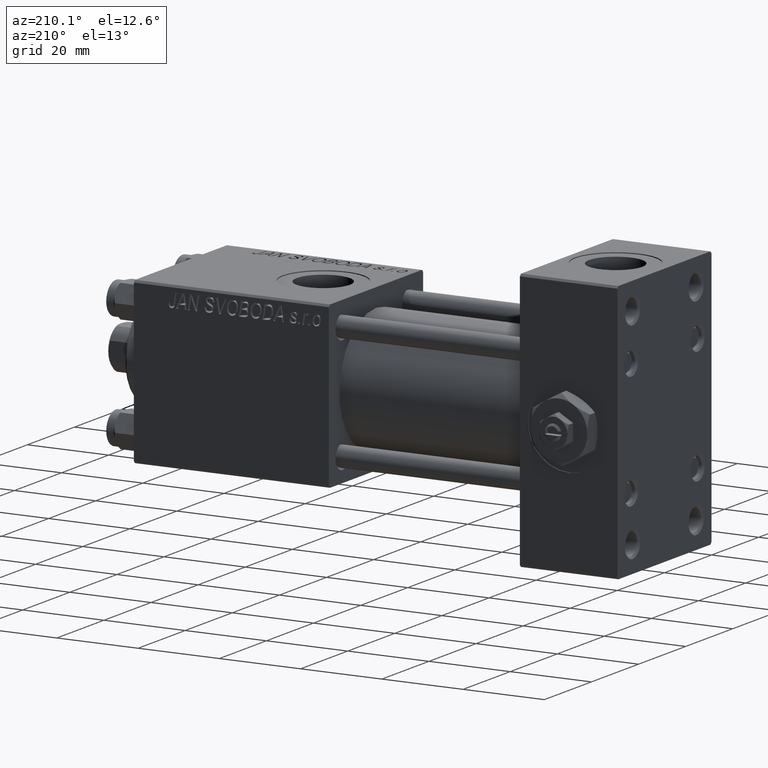
[diagram: clean part render]
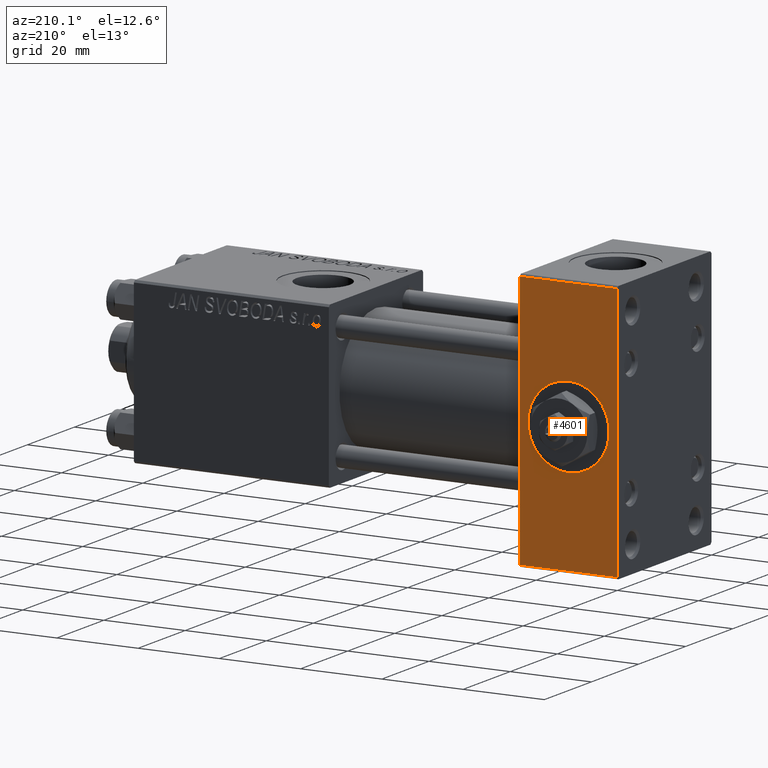
[diagram: same view with one face highlighted and labeled with its STEP entity id]
A machine part, auxiliary view. The second image highlights one B-rep face of the part: STEP entity #4601.
In plain terms, the highlighted planar face has unit normal (0, 1, 0).
Its self-contained STEP definition (entity closure, byte-faithful):
#504 = ORIENTED_EDGE ( 'NONE', *, *, #46518, .F. ) ;
#2480 = CARTESIAN_POINT ( 'NONE',  ( 24.00000000000000000, 19.99999999999999645, 31.50000000000000000 ) ) ;
#2987 = DIRECTION ( 'NONE',  ( -0.000000000000000000, 1.000000000000000000, 0.000000000000000000 ) ) ;
#3263 = EDGE_LOOP ( 'NONE', ( #10910, #19315 ) ) ;
#4601 = ADVANCED_FACE ( 'NONE', ( #50481, #30952 ), #51266, .T. ) ;
#4708 = VERTEX_POINT ( 'NONE', #35386 ) ;
#4879 = CARTESIAN_POINT ( 'NONE',  ( 12.00000000000000178, 19.99999999999999645, -10.00000000000000000 ) ) ;
#5393 = DIRECTION ( 'NONE',  ( 0.000000000000000000, 0.000000000000000000, -1.000000000000000000 ) ) ;
#5813 = CARTESIAN_POINT ( 'NONE',  ( 12.00000000000000000, 19.99999999999999645, 0.000000000000000000 ) ) ;
#6402 = LINE ( 'NONE', #38270, #42494 ) ;
#7451 = LINE ( 'NONE', #14536, #25039 ) ;
#9739 = DIRECTION ( 'NONE',  ( 0.000000000000000000, 1.000000000000000000, 0.000000000000000000 ) ) ;
#10910 = ORIENTED_EDGE ( 'NONE', *, *, #28566, .F. ) ;
#11413 = DIRECTION ( 'NONE',  ( -1.000000000000000000, 0.000000000000000000, 0.000000000000000000 ) ) ;
#12363 = CARTESIAN_POINT ( 'NONE',  ( 24.00000000000000000, 19.99999999999999645, -31.50000000000000000 ) ) ;
#12544 = AXIS2_PLACEMENT_3D ( 'NONE', #28562, #48367, #44469 ) ;
#13230 = EDGE_CURVE ( 'NONE', #44429, #18392, #6402, .T. ) ;
#14536 = CARTESIAN_POINT ( 'NONE',  ( 24.00000000000000000, 19.99999999999999645, 31.50000000000000000 ) ) ;
#15567 = DIRECTION ( 'NONE',  ( 1.000000000000000000, 0.000000000000000000, 0.000000000000000000 ) ) ;
#15989 = VERTEX_POINT ( 'NONE', #4879 ) ;
#18392 = VERTEX_POINT ( 'NONE', #12363 ) ;
#19202 = DIRECTION ( 'NONE',  ( 0.000000000000000000, -0.000000000000000000, 1.000000000000000000 ) ) ;
#19276 = EDGE_CURVE ( 'NONE', #15989, #37483, #49403, .T. ) ;
#19315 = ORIENTED_EDGE ( 'NONE', *, *, #19276, .F. ) ;
#21707 = CIRCLE ( 'NONE', #12544, 10.00000000000000000 ) ;
#22262 = VERTEX_POINT ( 'NONE', #31853 ) ;
#22956 = CARTESIAN_POINT ( 'NONE',  ( 0.000000000000000000, 19.99999999999999645, 32.00000000000000000 ) ) ;
#25039 = VECTOR ( 'NONE', #15567, 1000.000000000000000 ) ;
#26823 = EDGE_CURVE ( 'NONE', #4708, #44429, #7451, .T. ) ;
#26908 = AXIS2_PLACEMENT_3D ( 'NONE', #5813, #9739, #49152 ) ;
#27236 = EDGE_CURVE ( 'NONE', #18392, #22262, #31274, .T. ) ;
#28562 = CARTESIAN_POINT ( 'NONE',  ( 12.00000000000000000, 19.99999999999999645, 0.000000000000000000 ) ) ;
#28566 = EDGE_CURVE ( 'NONE', #37483, #15989, #21707, .T. ) ;
#30280 = DIRECTION ( 'NONE',  ( 0.000000000000000000, 0.000000000000000000, -1.000000000000000000 ) ) ;
#30952 = FACE_OUTER_BOUND ( 'NONE', #32737, .T. ) ;
#31274 = LINE ( 'NONE', #47166, #45827 ) ;
#31853 = CARTESIAN_POINT ( 'NONE',  ( 0.000000000000000000, 19.99999999999999645, -31.50000000000000000 ) ) ;
#32253 = VECTOR ( 'NONE', #30280, 1000.000000000000000 ) ;
#32737 = EDGE_LOOP ( 'NONE', ( #45944, #47538, #504, #36689 ) ) ;
#35386 = CARTESIAN_POINT ( 'NONE',  ( 0.000000000000000000, 19.99999999999999645, 31.50000000000000000 ) ) ;
#35412 = CARTESIAN_POINT ( 'NONE',  ( 12.00000000000000000, 19.99999999999999645, 10.00000000000000000 ) ) ;
#36523 = AXIS2_PLACEMENT_3D ( 'NONE', #46849, #2987, #19202 ) ;
#36689 = ORIENTED_EDGE ( 'NONE', *, *, #26823, .T. ) ;
#37483 = VERTEX_POINT ( 'NONE', #35412 ) ;
#38270 = CARTESIAN_POINT ( 'NONE',  ( 24.00000000000000000, 19.99999999999999645, 32.00000000000000000 ) ) ;
#38351 = LINE ( 'NONE', #22956, #32253 ) ;
#42494 = VECTOR ( 'NONE', #5393, 1000.000000000000000 ) ;
#44429 = VERTEX_POINT ( 'NONE', #2480 ) ;
#44469 = DIRECTION ( 'NONE',  ( 0.000000000000000000, 0.000000000000000000, 1.000000000000000000 ) ) ;
#45827 = VECTOR ( 'NONE', #11413, 1000.000000000000000 ) ;
#45944 = ORIENTED_EDGE ( 'NONE', *, *, #13230, .T. ) ;
#46518 = EDGE_CURVE ( 'NONE', #4708, #22262, #38351, .T. ) ;
#46849 = CARTESIAN_POINT ( 'NONE',  ( 24.00000000000000000, 19.99999999999999645, 32.00000000000000000 ) ) ;
#47166 = CARTESIAN_POINT ( 'NONE',  ( 24.00000000000000000, 19.99999999999999645, -31.50000000000000000 ) ) ;
#47538 = ORIENTED_EDGE ( 'NONE', *, *, #27236, .T. ) ;
#48367 = DIRECTION ( 'NONE',  ( 0.000000000000000000, 1.000000000000000000, 0.000000000000000000 ) ) ;
#49152 = DIRECTION ( 'NONE',  ( 0.000000000000000000, 0.000000000000000000, 1.000000000000000000 ) ) ;
#49403 = CIRCLE ( 'NONE', #26908, 10.00000000000000000 ) ;
#50481 = FACE_BOUND ( 'NONE', #3263, .T. ) ;
#51266 = PLANE ( 'NONE',  #36523 ) ;